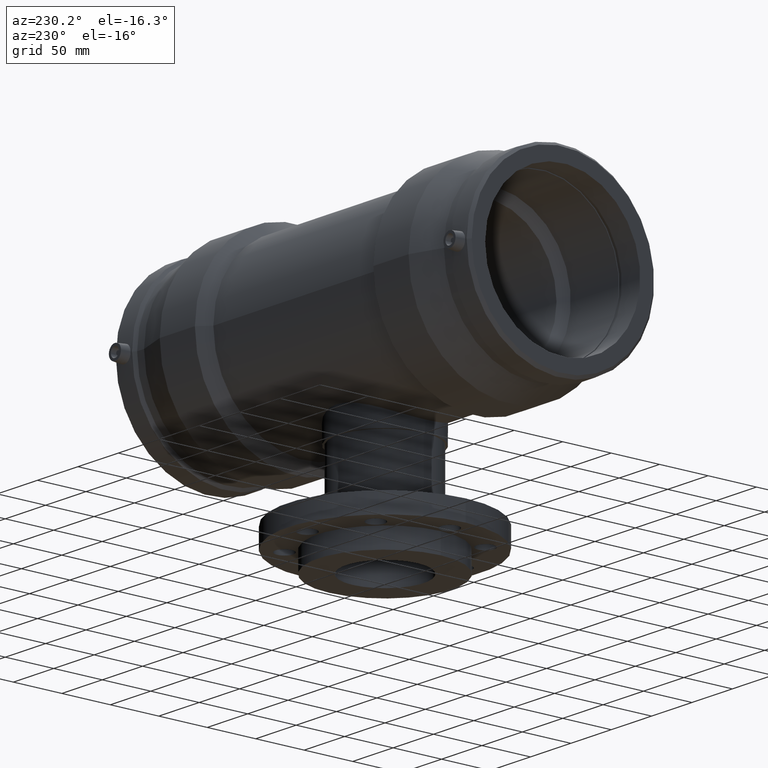
[diagram: clean part render]
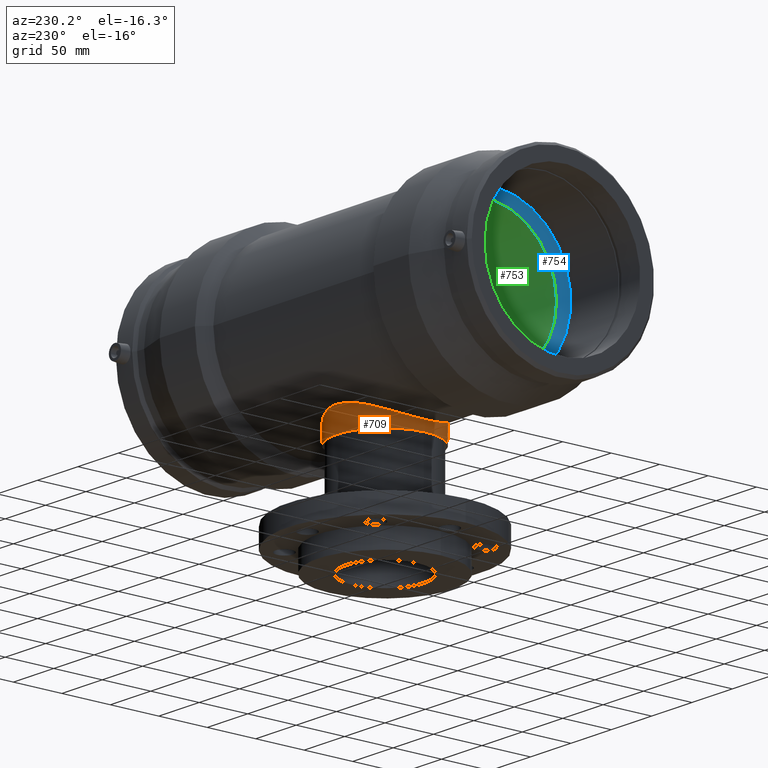
[diagram: same view with three faces highlighted in distinct colors, each labeled with its STEP entity id]
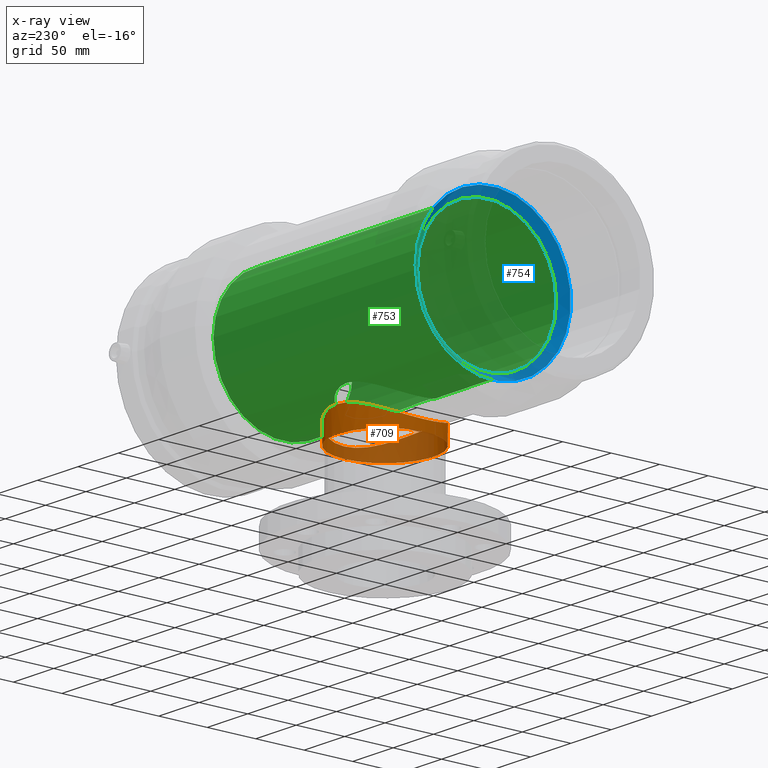
[diagram: x-ray of the same camera — body ghosted, the three highlighted faces saturated]
A machine part, auxiliary view with three faces highlighted in distinct colors.
The next image is the same camera in x-ray (body ghosted, the three faces saturated) — at least one of them is partly hidden behind the body in this view.
Their STEP definitions:

[orange] entity #709 — the highlighted cylindrical surface (bore or boss wall) has radius 50 mm, axis along (-0, 0, -1).
#53=FACE_BOUND('',#295,.T.);
#138=CIRCLE('',#788,50.);
#194=CYLINDRICAL_SURFACE('',#787,50.);
#225=FACE_OUTER_BOUND('',#294,.T.);
#294=EDGE_LOOP('',(#580));
#295=EDGE_LOOP('',(#581));
#416=B_SPLINE_CURVE_WITH_KNOTS('',3,(#1451,#1452,#1453,#1454,#1455,#1456,
#1457,#1458,#1459,#1460,#1461,#1462,#1463,#1464,#1465,#1466,#1467,#1468,
#1469,#1470,#1471,#1472,#1473,#1474,#1475,#1476,#1477,#1478,#1479,#1480,
#1481,#1482,#1483,#1484,#1485,#1486,#1487,#1488,#1489,#1490,#1491,#1492,
#1493,#1494,#1495,#1496,#1497,#1498,#1499,#1500,#1501,#1502,#1503,#1504,
#1505,#1506,#1507,#1508,#1509,#1510,#1511,#1512,#1513,#1514,#1515,#1516),
 .UNSPECIFIED.,.T.,.F.,(4,2,2,2,2,2,2,2,2,2,2,2,2,2,2,2,2,2,2,2,2,2,2,2,
2,2,2,2,2,2,2,2,4),(0.,0.965979129129673,1.93195825825935,2.89793738738902,
3.86391651651869,4.82632123562981,5.78872595474093,6.75113067385205,7.71353539296317,
8.67594011207429,9.63834483118541,10.6007495502965,11.5631542694076,12.5291333985373,
13.495112527667,14.4610916567967,15.4270707859263,16.393049915056,17.3590290441857,
18.3250081733154,19.290987302445,20.2533920215561,21.2157967406673,22.1782014597784,
23.1406061788895,24.1030108980006,25.0654156171117,26.0278203362229,26.990225055334,
27.9562041844637,28.9221833135933,29.888162442723,30.8541415718527),
 .UNSPECIFIED.);
#438=VERTEX_POINT('',#1448);
#439=VERTEX_POINT('',#1450);
#508=EDGE_CURVE('',#438,#438,#138,.T.);
#509=EDGE_CURVE('',#439,#439,#416,.T.);
#580=ORIENTED_EDGE('',*,*,#508,.F.);
#581=ORIENTED_EDGE('',*,*,#509,.F.);
#709=ADVANCED_FACE('',(#225,#53),#194,.T.);
#787=AXIS2_PLACEMENT_3D('',#1447,#939,#940);
#788=AXIS2_PLACEMENT_3D('',#1449,#941,#942);
#939=DIRECTION('center_axis',(-1.22464679914735E-16,0.,-1.));
#940=DIRECTION('ref_axis',(-1.,0.,0.));
#941=DIRECTION('center_axis',(-1.22464679914735E-16,0.,-1.));
#942=DIRECTION('ref_axis',(1.,0.,-1.22464679914735E-16));
#1447=CARTESIAN_POINT('Origin',(-6.36816335556624E-15,0.,-52.));
#1448=CARTESIAN_POINT('',(-50.,0.,-104.));
#1449=CARTESIAN_POINT('Origin',(-1.27363267111325E-14,0.,-104.));
#1450=CARTESIAN_POINT('',(-8.88178419700125E-15,50.,-79.1262282685078));
#1451=CARTESIAN_POINT('Ctrl Pts',(-8.88178419700125E-15,50.,-79.1262282685078));
#1452=CARTESIAN_POINT('Ctrl Pts',(-3.21993043043225,50.,-79.1262282685078));
#1453=CARTESIAN_POINT('Ctrl Pts',(-6.5209587325661,49.684138631292,-79.3286090221521));
#1454=CARTESIAN_POINT('Ctrl Pts',(-13.0369015131877,48.3846642705868,-80.1278110348417));
#1455=CARTESIAN_POINT('Ctrl Pts',(-16.2521166524917,47.4016325545638,-80.7231252777949));
#1456=CARTESIAN_POINT('Ctrl Pts',(-22.383185192777,44.8334662491639,-82.1772324526122));
#1457=CARTESIAN_POINT('Ctrl Pts',(-25.3051357209161,43.2462766410301,-83.035233272784));
#1458=CARTESIAN_POINT('Ctrl Pts',(-30.697321357828,39.6013232104044,-84.8341063901115));
#1459=CARTESIAN_POINT('Ctrl Pts',(-33.1677043122553,37.5429738063994,-85.773348564471));
#1460=CARTESIAN_POINT('Ctrl Pts',(-37.5348789073265,33.1757992113283,-87.554938853653));
#1461=CARTESIAN_POINT('Ctrl Pts',(-39.5920175933539,30.709481583024,-88.4639823385738));
#1462=CARTESIAN_POINT('Ctrl Pts',(-43.2401405050897,25.3158125684077,-90.1557433785081));
#1463=CARTESIAN_POINT('Ctrl Pts',(-44.831403884769,22.3882632318465,-90.9372276176941));
#1464=CARTESIAN_POINT('Ctrl Pts',(-47.4044267967216,16.2452913353364,-92.2328803734967));
#1465=CARTESIAN_POINT('Ctrl Pts',(-48.3882488616614,13.0238828328102,-92.7473897170879));
#1466=CARTESIAN_POINT('Ctrl Pts',(-49.686266318115,6.50531254876722,-93.431155039681));
#1467=CARTESIAN_POINT('Ctrl Pts',(-50.,3.2080157303704,-93.6));
#1468=CARTESIAN_POINT('Ctrl Pts',(-50.,-3.2080157303704,-93.6));
#1469=CARTESIAN_POINT('Ctrl Pts',(-49.686266318115,-6.50531254876721,-93.431155039681));
#1470=CARTESIAN_POINT('Ctrl Pts',(-48.3882488616614,-13.0238828328102,-92.7473897170878));
#1471=CARTESIAN_POINT('Ctrl Pts',(-47.4044267967216,-16.2452913353364,-92.2328803734967));
#1472=CARTESIAN_POINT('Ctrl Pts',(-44.8314038847689,-22.3882632318465,-90.9372276176941));
#1473=CARTESIAN_POINT('Ctrl Pts',(-43.2401405050897,-25.3158125684077,-90.1557433785081));
#1474=CARTESIAN_POINT('Ctrl Pts',(-39.5920175933539,-30.709481583024,-88.4639823385738));
#1475=CARTESIAN_POINT('Ctrl Pts',(-37.5348789073265,-33.1757992113283,-87.554938853653));
#1476=CARTESIAN_POINT('Ctrl Pts',(-33.1677043122553,-37.5429738063994,-85.773348564471));
#1477=CARTESIAN_POINT('Ctrl Pts',(-30.697321357828,-39.6013232104044,-84.8341063901115));
#1478=CARTESIAN_POINT('Ctrl Pts',(-25.3051357209161,-43.2462766410301,-83.035233272784));
#1479=CARTESIAN_POINT('Ctrl Pts',(-22.383185192777,-44.8334662491639,-82.1772324526122));
#1480=CARTESIAN_POINT('Ctrl Pts',(-16.2521166524917,-47.4016325545638,-80.7231252777949));
#1481=CARTESIAN_POINT('Ctrl Pts',(-13.0369015131877,-48.3846642705868,-80.1278110348417));
#1482=CARTESIAN_POINT('Ctrl Pts',(-6.5209587325661,-49.684138631292,-79.3286090221521));
#1483=CARTESIAN_POINT('Ctrl Pts',(-3.21993043043225,-50.,-79.1262282685078));
#1484=CARTESIAN_POINT('Ctrl Pts',(3.21993043043224,-50.,-79.1262282685078));
#1485=CARTESIAN_POINT('Ctrl Pts',(6.52095873256609,-49.684138631292,-79.3286090221521));
#1486=CARTESIAN_POINT('Ctrl Pts',(13.0369015131877,-48.3846642705868,-80.1278110348417));
#1487=CARTESIAN_POINT('Ctrl Pts',(16.2521166524917,-47.4016325545638,-80.7231252777949));
#1488=CARTESIAN_POINT('Ctrl Pts',(22.383185192777,-44.8334662491639,-82.1772324526122));
#1489=CARTESIAN_POINT('Ctrl Pts',(25.3051357209161,-43.2462766410301,-83.035233272784));
#1490=CARTESIAN_POINT('Ctrl Pts',(30.697321357828,-39.6013232104044,-84.8341063901115));
#1491=CARTESIAN_POINT('Ctrl Pts',(33.1677043122553,-37.5429738063994,-85.773348564471));
#1492=CARTESIAN_POINT('Ctrl Pts',(37.5348789073265,-33.1757992113283,-87.554938853653));
#1493=CARTESIAN_POINT('Ctrl Pts',(39.5920175933539,-30.709481583024,-88.4639823385738));
#1494=CARTESIAN_POINT('Ctrl Pts',(43.2401405050896,-25.3158125684077,-90.1557433785081));
#1495=CARTESIAN_POINT('Ctrl Pts',(44.8314038847689,-22.3882632318465,-90.9372276176942));
#1496=CARTESIAN_POINT('Ctrl Pts',(47.4044267967216,-16.2452913353364,-92.2328803734967));
#1497=CARTESIAN_POINT('Ctrl Pts',(48.3882488616613,-13.0238828328102,-92.7473897170879));
#1498=CARTESIAN_POINT('Ctrl Pts',(49.6862663181149,-6.50531254876721,-93.431155039681));
#1499=CARTESIAN_POINT('Ctrl Pts',(50.,-3.2080157303704,-93.6));
#1500=CARTESIAN_POINT('Ctrl Pts',(50.,3.20801573037038,-93.6));
#1501=CARTESIAN_POINT('Ctrl Pts',(49.6862663181149,6.5053125487672,-93.431155039681));
#1502=CARTESIAN_POINT('Ctrl Pts',(48.3882488616614,13.0238828328102,-92.7473897170879));
#1503=CARTESIAN_POINT('Ctrl Pts',(47.4044267967216,16.2452913353364,-92.2328803734967));
#1504=CARTESIAN_POINT('Ctrl Pts',(44.8314038847689,22.3882632318465,-90.9372276176942));
#1505=CARTESIAN_POINT('Ctrl Pts',(43.2401405050897,25.3158125684077,-90.1557433785081));
#1506=CARTESIAN_POINT('Ctrl Pts',(39.5920175933539,30.709481583024,-88.4639823385738));
#1507=CARTESIAN_POINT('Ctrl Pts',(37.5348789073265,33.1757992113283,-87.554938853653));
#1508=CARTESIAN_POINT('Ctrl Pts',(33.1677043122553,37.5429738063994,-85.773348564471));
#1509=CARTESIAN_POINT('Ctrl Pts',(30.697321357828,39.6013232104044,-84.8341063901115));
#1510=CARTESIAN_POINT('Ctrl Pts',(25.3051357209161,43.2462766410301,-83.035233272784));
#1511=CARTESIAN_POINT('Ctrl Pts',(22.383185192777,44.8334662491639,-82.1772324526122));
#1512=CARTESIAN_POINT('Ctrl Pts',(16.2521166524917,47.4016325545638,-80.7231252777949));
#1513=CARTESIAN_POINT('Ctrl Pts',(13.0369015131877,48.3846642705868,-80.1278110348417));
#1514=CARTESIAN_POINT('Ctrl Pts',(6.52095873256607,49.684138631292,-79.3286090221521));
#1515=CARTESIAN_POINT('Ctrl Pts',(3.21993043043223,50.,-79.1262282685078));
#1516=CARTESIAN_POINT('Ctrl Pts',(-9.43689570931383E-15,50.,-79.1262282685078));

[blue] entity #754 — the highlighted conical surface has half-angle 45 deg.
#28=CONICAL_SURFACE('',#875,76.,45.);
#116=FACE_BOUND('',#403,.T.);
#180=CIRCLE('',#874,72.);
#181=CIRCLE('',#876,80.);
#270=FACE_OUTER_BOUND('',#402,.T.);
#402=EDGE_LOOP('',(#688));
#403=EDGE_LOOP('',(#689));
#483=VERTEX_POINT('',#1713);
#484=VERTEX_POINT('',#1716);
#553=EDGE_CURVE('',#483,#483,#180,.T.);
#554=EDGE_CURVE('',#484,#484,#181,.T.);
#688=ORIENTED_EDGE('',*,*,#553,.T.);
#689=ORIENTED_EDGE('',*,*,#554,.F.);
#754=ADVANCED_FACE('',(#270,#116),#28,.F.);
#874=AXIS2_PLACEMENT_3D('',#1714,#1113,#1114);
#875=AXIS2_PLACEMENT_3D('',#1715,#1115,#1116);
#876=AXIS2_PLACEMENT_3D('',#1717,#1117,#1118);
#1113=DIRECTION('center_axis',(1.,0.,0.));
#1114=DIRECTION('ref_axis',(0.,0.,-1.));
#1115=DIRECTION('center_axis',(-1.,0.,0.));
#1116=DIRECTION('ref_axis',(0.,1.,0.));
#1117=DIRECTION('center_axis',(1.,0.,0.));
#1118=DIRECTION('ref_axis',(0.,0.,-1.));
#1713=CARTESIAN_POINT('',(-126.,72.,0.));
#1714=CARTESIAN_POINT('Origin',(-126.,0.,0.));
#1715=CARTESIAN_POINT('Origin',(-130.,0.,0.));
#1716=CARTESIAN_POINT('',(-134.,80.,0.));
#1717=CARTESIAN_POINT('Origin',(-134.,0.,0.));

[green] entity #753 — the highlighted cylindrical surface (bore or boss wall) has radius 72 mm, axis along (1, 0, 0).
#114=FACE_BOUND('',#400,.T.);
#115=FACE_BOUND('',#401,.T.);
#179=CIRCLE('',#872,72.);
#180=CIRCLE('',#874,72.);
#212=CYLINDRICAL_SURFACE('',#873,72.);
#269=FACE_OUTER_BOUND('',#399,.T.);
#399=EDGE_LOOP('',(#685));
#400=EDGE_LOOP('',(#686));
#401=EDGE_LOOP('',(#687));
#415=B_SPLINE_CURVE_WITH_KNOTS('',3,(#1366,#1367,#1368,#1369,#1370,#1371,
#1372,#1373,#1374,#1375,#1376,#1377,#1378,#1379,#1380,#1381,#1382,#1383,
#1384,#1385,#1386,#1387,#1388,#1389,#1390,#1391,#1392,#1393,#1394,#1395,
#1396,#1397,#1398,#1399,#1400,#1401,#1402,#1403),.UNSPECIFIED.,.T.,.F.,
(4,2,2,2,2,2,2,2,2,2,2,2,2,2,2,2,2,2,4),(0.,1.65255597113278,3.10847843345491,
4.49014032520943,5.90837950478335,7.50986539088708,9.03219984916177,10.386225994992,
11.7274797958434,13.2553883768989,14.8585620140265,16.287629352798,17.6985096274527,
19.1439460192377,20.8277513580647,22.2811586608979,23.6034643677171,24.6998924418316,
25.7620428774483),.UNSPECIFIED.);
#420=VERTEX_POINT('',#1364);
#482=VERTEX_POINT('',#1710);
#483=VERTEX_POINT('',#1713);
#490=EDGE_CURVE('',#420,#420,#415,.T.);
#552=EDGE_CURVE('',#482,#482,#179,.T.);
#553=EDGE_CURVE('',#483,#483,#180,.T.);
#685=ORIENTED_EDGE('',*,*,#552,.T.);
#686=ORIENTED_EDGE('',*,*,#490,.T.);
#687=ORIENTED_EDGE('',*,*,#553,.F.);
#753=ADVANCED_FACE('',(#269,#114,#115),#212,.F.);
#872=AXIS2_PLACEMENT_3D('',#1711,#1109,#1110);
#873=AXIS2_PLACEMENT_3D('',#1712,#1111,#1112);
#874=AXIS2_PLACEMENT_3D('',#1714,#1113,#1114);
#1109=DIRECTION('center_axis',(1.,0.,0.));
#1110=DIRECTION('ref_axis',(0.,0.,-1.));
#1111=DIRECTION('center_axis',(1.,0.,0.));
#1112=DIRECTION('ref_axis',(0.,1.,0.));
#1113=DIRECTION('center_axis',(1.,0.,0.));
#1114=DIRECTION('ref_axis',(0.,0.,-1.));
#1364=CARTESIAN_POINT('',(-7.33153398755001E-15,40.,-59.8665181883831));
#1366=CARTESIAN_POINT('Ctrl Pts',(26.9935248151284,29.5186317104138,-65.6707726613975));
#1367=CARTESIAN_POINT('Ctrl Pts',(30.8835939983102,25.961330001482,-67.2697591628995));
#1368=CARTESIAN_POINT('Ctrl Pts',(34.0776738007177,21.6284955318934,-68.8590594005385));
#1369=CARTESIAN_POINT('Ctrl Pts',(38.3202501965853,12.4148931303853,-71.0602271988085));
#1370=CARTESIAN_POINT('Ctrl Pts',(39.542726125631,7.74401399025381,-71.746368215503));
#1371=CARTESIAN_POINT('Ctrl Pts',(40.228916754936,-1.6986536307869,-72.1268912337297));
#1372=CARTESIAN_POINT('Ctrl Pts',(39.7666980896514,-6.28162799264423,-71.8633369959859));
#1373=CARTESIAN_POINT('Ctrl Pts',(37.2956973468432,-15.1986378695481,-70.5256093930348));
#1374=CARTESIAN_POINT('Ctrl Pts',(35.2816828464782,-19.391145755284,-69.4509893592649));
#1375=CARTESIAN_POINT('Ctrl Pts',(29.6683978328346,-27.3189655021993,-66.7636337328199));
#1376=CARTESIAN_POINT('Ctrl Pts',(25.910742518203,-30.9018664120967,-65.106699877446));
#1377=CARTESIAN_POINT('Ctrl Pts',(17.4917905163324,-36.3014396795074,-62.2500416313206));
#1378=CARTESIAN_POINT('Ctrl Pts',(12.8770439271924,-38.2039027301482,-61.0400080845371));
#1379=CARTESIAN_POINT('Ctrl Pts',(3.55214286558597,-40.0929156122261,-59.8137283246811));
#1380=CARTESIAN_POINT('Ctrl Pts',(-0.928506566026968,-40.2416100825167,
-59.7087921697896));
#1381=CARTESIAN_POINT('Ctrl Pts',(-9.80428878833014,-39.0351765933011,-60.5043150242795));
#1382=CARTESIAN_POINT('Ctrl Pts',(-14.013406287581,-37.7140736915127,-61.3727938382034));
#1383=CARTESIAN_POINT('Ctrl Pts',(-22.2937498064125,-33.5751477615449,-63.7429253184169));
#1384=CARTESIAN_POINT('Ctrl Pts',(-26.2347972039247,-30.5874608598848,-65.2957397889425));
#1385=CARTESIAN_POINT('Ctrl Pts',(-32.986542890824,-23.1981391534832,-68.2824992187472));
#1386=CARTESIAN_POINT('Ctrl Pts',(-35.7310077564999,-18.7358365243022,-69.7017806155119));
#1387=CARTESIAN_POINT('Ctrl Pts',(-39.1656747119588,-9.38558030323359,-71.5267049354395));
#1388=CARTESIAN_POINT('Ctrl Pts',(-40.0078815176936,-4.70601860775662,-72.0043786167402));
#1389=CARTESIAN_POINT('Ctrl Pts',(-39.992108865346,4.77832220575884,-71.9956160404798));
#1390=CARTESIAN_POINT('Ctrl Pts',(-39.1558357160241,9.39699423715007,-71.5217319846596));
#1391=CARTESIAN_POINT('Ctrl Pts',(-35.9303773206345,18.2086845114647,-69.807452176367));
#1392=CARTESIAN_POINT('Ctrl Pts',(-33.5422383375957,22.2786768408184,-68.5711599026388));
#1393=CARTESIAN_POINT('Ctrl Pts',(-27.0758763718249,29.9326891151661,-65.6315350970255));
#1394=CARTESIAN_POINT('Ctrl Pts',(-22.7906193012351,33.3176847710565,-63.8889705357662));
#1395=CARTESIAN_POINT('Ctrl Pts',(-13.7485910349784,37.8542062274494,-61.2937329672733));
#1396=CARTESIAN_POINT('Ctrl Pts',(-9.16696358647083,39.2346880061232,-60.3741582652175));
#1397=CARTESIAN_POINT('Ctrl Pts',(0.0151975760548562,40.2413179672668,-59.7073462512626));
#1398=CARTESIAN_POINT('Ctrl Pts',(4.38714434252615,39.9977388399179,-59.8785792297742));
#1399=CARTESIAN_POINT('Ctrl Pts',(12.1852146396717,38.2704747889637,-60.9937650018702));
#1400=CARTESIAN_POINT('Ctrl Pts',(15.5500950375603,37.0225889776647,-61.7811670004182));
#1401=CARTESIAN_POINT('Ctrl Pts',(21.7000313741312,33.7760005391204,-63.6124661155532));
#1402=CARTESIAN_POINT('Ctrl Pts',(24.4932532662843,31.805022988993,-64.6430530326629));
#1403=CARTESIAN_POINT('Ctrl Pts',(26.9935248151284,29.5186317104138,-65.6707726613975));
#1710=CARTESIAN_POINT('',(126.,72.,0.));
#1711=CARTESIAN_POINT('Origin',(126.,0.,0.));
#1712=CARTESIAN_POINT('Origin',(0.,0.,0.));
#1713=CARTESIAN_POINT('',(-126.,72.,0.));
#1714=CARTESIAN_POINT('Origin',(-126.,0.,0.));